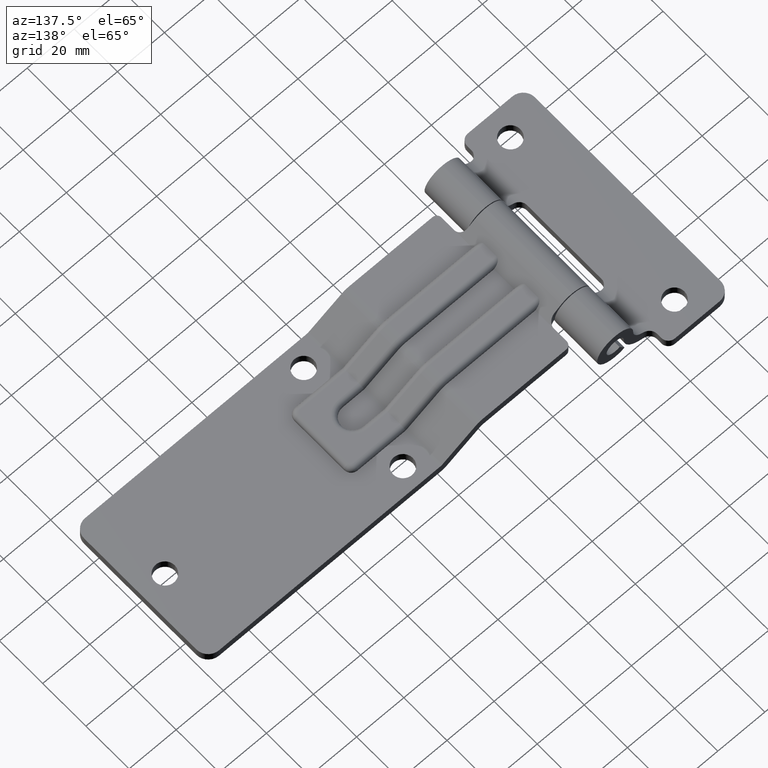
[diagram: clean part render]
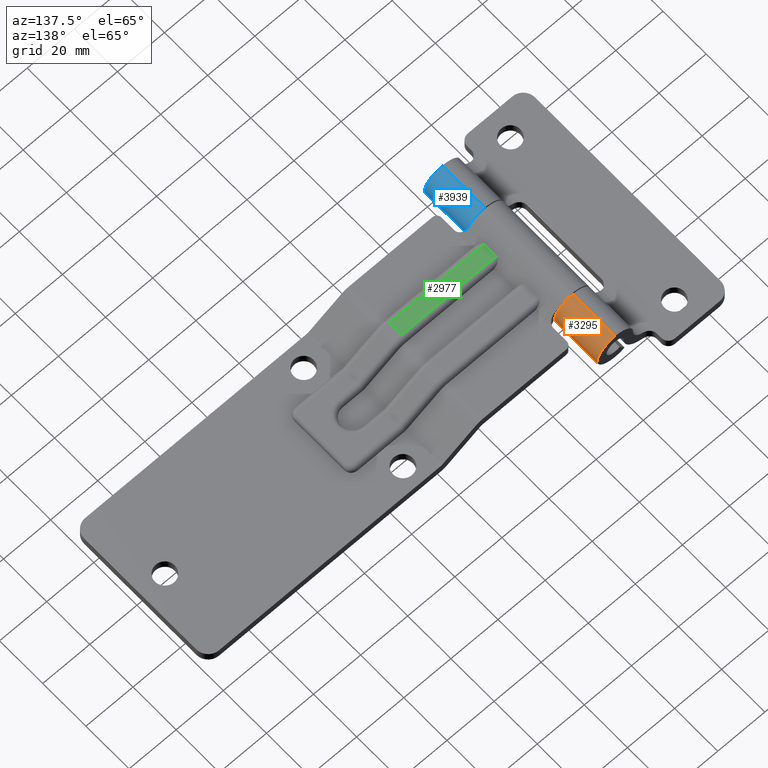
[diagram: same view with three faces highlighted in distinct colors, each labeled with its STEP entity id]
A machine part, auxiliary view with three faces highlighted in distinct colors.
Their STEP definitions:

[orange] entity #3295 — the highlighted cylindrical surface (edge-blend (fillet) strip) has radius 7.65 mm, axis along (0, -1, 0).
#66 = VERTEX_POINT ( 'NONE', #2302 ) ;
#88 = VERTEX_POINT ( 'NONE', #4121 ) ;
#111 = CIRCLE ( 'NONE', #1261, 7.649999999999996800 ) ;
#203 = CARTESIAN_POINT ( 'NONE',  ( 28.50000000000001100, 77.66049561285177600, 3.850000000000001000 ) ) ;
#211 = DIRECTION ( 'NONE',  ( 0.0000000000000000000, -1.000000000000000000, 0.0000000000000000000 ) ) ;
#337 = ORIENTED_EDGE ( 'NONE', *, *, #2303, .T. ) ;
#622 = AXIS2_PLACEMENT_3D ( 'NONE', #4348, #4612, #4535 ) ;
#892 = EDGE_CURVE ( 'NONE', #66, #88, #111, .T. ) ;
#968 = CARTESIAN_POINT ( 'NONE',  ( 28.50000000000001100, 40.00000000000000000, 19.14999999999999900 ) ) ;
#1003 = VECTOR ( 'NONE', #211, 1000.000000000000000 ) ;
#1247 = LINE ( 'NONE', #203, #1003 ) ;
#1261 = AXIS2_PLACEMENT_3D ( 'NONE', #4374, #3152, #3499 ) ;
#1406 = ORIENTED_EDGE ( 'NONE', *, *, #892, .T. ) ;
#1590 = ORIENTED_EDGE ( 'NONE', *, *, #2520, .T. ) ;
#1826 = CARTESIAN_POINT ( 'NONE',  ( 28.50000000000001100, 77.66049561285177600, 11.50000000000000000 ) ) ;
#1854 = DIRECTION ( 'NONE',  ( 0.0000000000000000000, 0.0000000000000000000, -1.000000000000000000 ) ) ;
#1879 = DIRECTION ( 'NONE',  ( 0.0000000000000000000, -1.000000000000000000, 0.0000000000000000000 ) ) ;
#1940 = VECTOR ( 'NONE', #4166, 1000.000000000000000 ) ;
#1965 = LINE ( 'NONE', #4138, #1940 ) ;
#2241 = EDGE_CURVE ( 'NONE', #2782, #88, #1247, .T. ) ;
#2302 = CARTESIAN_POINT ( 'NONE',  ( 28.50000000000001100, 20.29999999999999700, 19.14999999999999900 ) ) ;
#2303 = EDGE_CURVE ( 'NONE', #2782, #3476, #3834, .T. ) ;
#2342 = EDGE_LOOP ( 'NONE', ( #337, #1590, #1406, #2843 ) ) ;
#2520 = EDGE_CURVE ( 'NONE', #3476, #66, #1965, .T. ) ;
#2782 = VERTEX_POINT ( 'NONE', #3045 ) ;
#2834 = FACE_OUTER_BOUND ( 'NONE', #2342, .T. ) ;
#2843 = ORIENTED_EDGE ( 'NONE', *, *, #2241, .F. ) ;
#3045 = CARTESIAN_POINT ( 'NONE',  ( 28.50000000000001100, 40.00000000000000000, 3.850000000000001000 ) ) ;
#3152 = DIRECTION ( 'NONE',  ( -1.765621858500567700E-016, 1.000000000000000000, -0.0000000000000000000 ) ) ;
#3295 = ADVANCED_FACE ( 'NONE', ( #2834 ), #4076, .T. ) ;
#3476 = VERTEX_POINT ( 'NONE', #968 ) ;
#3499 = DIRECTION ( 'NONE',  ( 1.000000000000000000, 0.0000000000000000000, 0.0000000000000000000 ) ) ;
#3834 = CIRCLE ( 'NONE', #622, 7.649999999999996800 ) ;
#3855 = AXIS2_PLACEMENT_3D ( 'NONE', #1826, #1879, #1854 ) ;
#4076 = CYLINDRICAL_SURFACE ( 'NONE', #3855, 7.649999999999998600 ) ;
#4121 = CARTESIAN_POINT ( 'NONE',  ( 28.50000000000001100, 20.29999999999999700, 3.850000000000001000 ) ) ;
#4138 = CARTESIAN_POINT ( 'NONE',  ( 28.50000000000001100, 77.66049561285177600, 19.14999999999999900 ) ) ;
#4166 = DIRECTION ( 'NONE',  ( 0.0000000000000000000, -1.000000000000000000, 0.0000000000000000000 ) ) ;
#4348 = CARTESIAN_POINT ( 'NONE',  ( 28.50000000000001100, 40.00000000000000000, 11.50000000000000000 ) ) ;
#4374 = CARTESIAN_POINT ( 'NONE',  ( 28.50000000000001100, 20.29999999999999700, 11.50000000000000000 ) ) ;
#4535 = DIRECTION ( 'NONE',  ( -1.000000000000000000, -9.070449547591151500E-016, 0.0000000000000000000 ) ) ;
#4612 = DIRECTION ( 'NONE',  ( 7.062487434002271800E-016, -1.000000000000000000, -0.0000000000000000000 ) ) ;

[blue] entity #3939 — the highlighted cylindrical surface (edge-blend (fillet) strip) has radius 7.65 mm, axis along (0, -1, 0).
#64 = FACE_OUTER_BOUND ( 'NONE', #3804, .T. ) ;
#318 = CIRCLE ( 'NONE', #716, 7.649999999999996800 ) ;
#367 = DIRECTION ( 'NONE',  ( -1.000000000000000000, 0.0000000000000000000, 0.0000000000000000000 ) ) ;
#372 = DIRECTION ( 'NONE',  ( -1.765621858500567700E-016, -1.000000000000000000, -0.0000000000000000000 ) ) ;
#375 = CARTESIAN_POINT ( 'NONE',  ( 28.50000000000001100, -20.29999999999999700, 11.50000000000000000 ) ) ;
#383 = LINE ( 'NONE', #1516, #843 ) ;
#519 = VERTEX_POINT ( 'NONE', #2718 ) ;
#716 = AXIS2_PLACEMENT_3D ( 'NONE', #375, #372, #367 ) ;
#721 = ORIENTED_EDGE ( 'NONE', *, *, #2155, .T. ) ;
#823 = ORIENTED_EDGE ( 'NONE', *, *, #1842, .F. ) ;
#843 = VECTOR ( 'NONE', #1498, 1000.000000000000000 ) ;
#1011 = AXIS2_PLACEMENT_3D ( 'NONE', #2204, #3289, #3215 ) ;
#1111 = ORIENTED_EDGE ( 'NONE', *, *, #1648, .T. ) ;
#1312 = VERTEX_POINT ( 'NONE', #2865 ) ;
#1498 = DIRECTION ( 'NONE',  ( 0.0000000000000000000, -1.000000000000000000, 0.0000000000000000000 ) ) ;
#1516 = CARTESIAN_POINT ( 'NONE',  ( 28.50000000000001100, 77.66049561285177600, 3.850000000000001000 ) ) ;
#1523 = CARTESIAN_POINT ( 'NONE',  ( 28.50000000000001100, 77.66049561285177600, 19.14999999999999900 ) ) ;
#1557 = DIRECTION ( 'NONE',  ( 0.0000000000000000000, -1.000000000000000000, 0.0000000000000000000 ) ) ;
#1648 = EDGE_CURVE ( 'NONE', #4532, #519, #4238, .T. ) ;
#1834 = EDGE_CURVE ( 'NONE', #3043, #4532, #4188, .T. ) ;
#1842 = EDGE_CURVE ( 'NONE', #1312, #519, #383, .T. ) ;
#1924 = VECTOR ( 'NONE', #1557, 1000.000000000000000 ) ;
#2013 = ORIENTED_EDGE ( 'NONE', *, *, #1834, .T. ) ;
#2023 = CYLINDRICAL_SURFACE ( 'NONE', #2046, 7.649999999999998600 ) ;
#2046 = AXIS2_PLACEMENT_3D ( 'NONE', #3416, #3795, #3414 ) ;
#2155 = EDGE_CURVE ( 'NONE', #1312, #3043, #318, .T. ) ;
#2204 = CARTESIAN_POINT ( 'NONE',  ( 28.50000000000001100, -40.00000000000000700, 11.50000000000000000 ) ) ;
#2325 = CARTESIAN_POINT ( 'NONE',  ( 28.50000000000001100, -40.00000000000000700, 19.14999999999999900 ) ) ;
#2718 = CARTESIAN_POINT ( 'NONE',  ( 28.50000000000001100, -40.00000000000000700, 3.850000000000001000 ) ) ;
#2865 = CARTESIAN_POINT ( 'NONE',  ( 28.50000000000001100, -20.29999999999999700, 3.850000000000001000 ) ) ;
#3001 = CARTESIAN_POINT ( 'NONE',  ( 28.50000000000001100, -20.29999999999999700, 19.14999999999999900 ) ) ;
#3043 = VERTEX_POINT ( 'NONE', #3001 ) ;
#3215 = DIRECTION ( 'NONE',  ( 1.000000000000000000, -9.070449547591151500E-016, 0.0000000000000000000 ) ) ;
#3289 = DIRECTION ( 'NONE',  ( 7.062487434002271800E-016, 1.000000000000000000, 0.0000000000000000000 ) ) ;
#3414 = DIRECTION ( 'NONE',  ( 0.0000000000000000000, 0.0000000000000000000, -1.000000000000000000 ) ) ;
#3416 = CARTESIAN_POINT ( 'NONE',  ( 28.50000000000001100, 77.66049561285177600, 11.50000000000000000 ) ) ;
#3795 = DIRECTION ( 'NONE',  ( 0.0000000000000000000, -1.000000000000000000, 0.0000000000000000000 ) ) ;
#3804 = EDGE_LOOP ( 'NONE', ( #721, #2013, #1111, #823 ) ) ;
#3939 = ADVANCED_FACE ( 'NONE', ( #64 ), #2023, .T. ) ;
#4188 = LINE ( 'NONE', #1523, #1924 ) ;
#4238 = CIRCLE ( 'NONE', #1011, 7.649999999999996800 ) ;
#4532 = VERTEX_POINT ( 'NONE', #2325 ) ;

[green] entity #2977 — the highlighted planar face has unit normal (-0, 0, -1).
#9 = VECTOR ( 'NONE', #4441, 1000.000000000000000 ) ;
#472 = EDGE_CURVE ( 'NONE', #1892, #1156, #4414, .T. ) ;
#513 = ORIENTED_EDGE ( 'NONE', *, *, #3310, .T. ) ;
#548 = VECTOR ( 'NONE', #1679, 1000.000000000000000 ) ;
#878 = VECTOR ( 'NONE', #1761, 1000.000000000000000 ) ;
#1156 = VERTEX_POINT ( 'NONE', #4261 ) ;
#1333 = LINE ( 'NONE', #1974, #3634 ) ;
#1438 = CARTESIAN_POINT ( 'NONE',  ( -2.941623130959801500, -12.50000000000000200, 6.200000000000002000 ) ) ;
#1679 = DIRECTION ( 'NONE',  ( -0.0000000000000000000, -1.000000000000000000, -0.0000000000000000000 ) ) ;
#1684 = CARTESIAN_POINT ( 'NONE',  ( 37.46410161513775700, 14.50000000000000000, 6.199999999999998400 ) ) ;
#1759 = CARTESIAN_POINT ( 'NONE',  ( -3.999999999999996400, -6.750000000000000000, 6.200000000000002000 ) ) ;
#1761 = DIRECTION ( 'NONE',  ( -1.000000000000000000, -0.0000000000000000000, 8.367351074325423900E-017 ) ) ;
#1780 = EDGE_LOOP ( 'NONE', ( #3781, #2660, #4281, #513 ) ) ;
#1892 = VERTEX_POINT ( 'NONE', #1438 ) ;
#1974 = CARTESIAN_POINT ( 'NONE',  ( -4.000000000000000000, -12.50000000000000200, 6.200000000000002000 ) ) ;
#2003 = DIRECTION ( 'NONE',  ( 1.000000000000000000, 0.0000000000000000000, -8.367351074325423900E-017 ) ) ;
#2147 = CARTESIAN_POINT ( 'NONE',  ( 37.46410161513775700, -12.49999999999999500, 6.199999999999998400 ) ) ;
#2160 = PLANE ( 'NONE',  #4509 ) ;
#2490 = CARTESIAN_POINT ( 'NONE',  ( -4.000000000000000000, 14.50000000000000000, 6.200000000000002000 ) ) ;
#2504 = DIRECTION ( 'NONE',  ( -8.367351074325423900E-017, 0.0000000000000000000, -1.000000000000000000 ) ) ;
#2553 = DIRECTION ( 'NONE',  ( -1.000000000000000000, 0.0000000000000000000, 8.367351074325423900E-017 ) ) ;
#2660 = ORIENTED_EDGE ( 'NONE', *, *, #3258, .T. ) ;
#2860 = LINE ( 'NONE', #1759, #878 ) ;
#2977 = ADVANCED_FACE ( 'NONE', ( #3740 ), #2160, .F. ) ;
#3202 = VERTEX_POINT ( 'NONE', #2147 ) ;
#3258 = EDGE_CURVE ( 'NONE', #1892, #3202, #1333, .T. ) ;
#3310 = EDGE_CURVE ( 'NONE', #4078, #1156, #2860, .T. ) ;
#3318 = EDGE_CURVE ( 'NONE', #4078, #3202, #4130, .T. ) ;
#3511 = CARTESIAN_POINT ( 'NONE',  ( 37.46410161513775700, -6.749999999999993800, 6.199999999999998400 ) ) ;
#3634 = VECTOR ( 'NONE', #2003, 1000.000000000000000 ) ;
#3740 = FACE_OUTER_BOUND ( 'NONE', #1780, .T. ) ;
#3781 = ORIENTED_EDGE ( 'NONE', *, *, #472, .F. ) ;
#4078 = VERTEX_POINT ( 'NONE', #3511 ) ;
#4130 = LINE ( 'NONE', #1684, #548 ) ;
#4143 = CARTESIAN_POINT ( 'NONE',  ( -2.941623130959802900, 14.50000000000000000, 6.200000000000002000 ) ) ;
#4261 = CARTESIAN_POINT ( 'NONE',  ( -2.941623130959802900, -6.749999999999997300, 6.200000000000002000 ) ) ;
#4281 = ORIENTED_EDGE ( 'NONE', *, *, #3318, .F. ) ;
#4414 = LINE ( 'NONE', #4143, #9 ) ;
#4441 = DIRECTION ( 'NONE',  ( 0.0000000000000000000, 1.000000000000000000, 0.0000000000000000000 ) ) ;
#4509 = AXIS2_PLACEMENT_3D ( 'NONE', #2490, #2504, #2553 ) ;